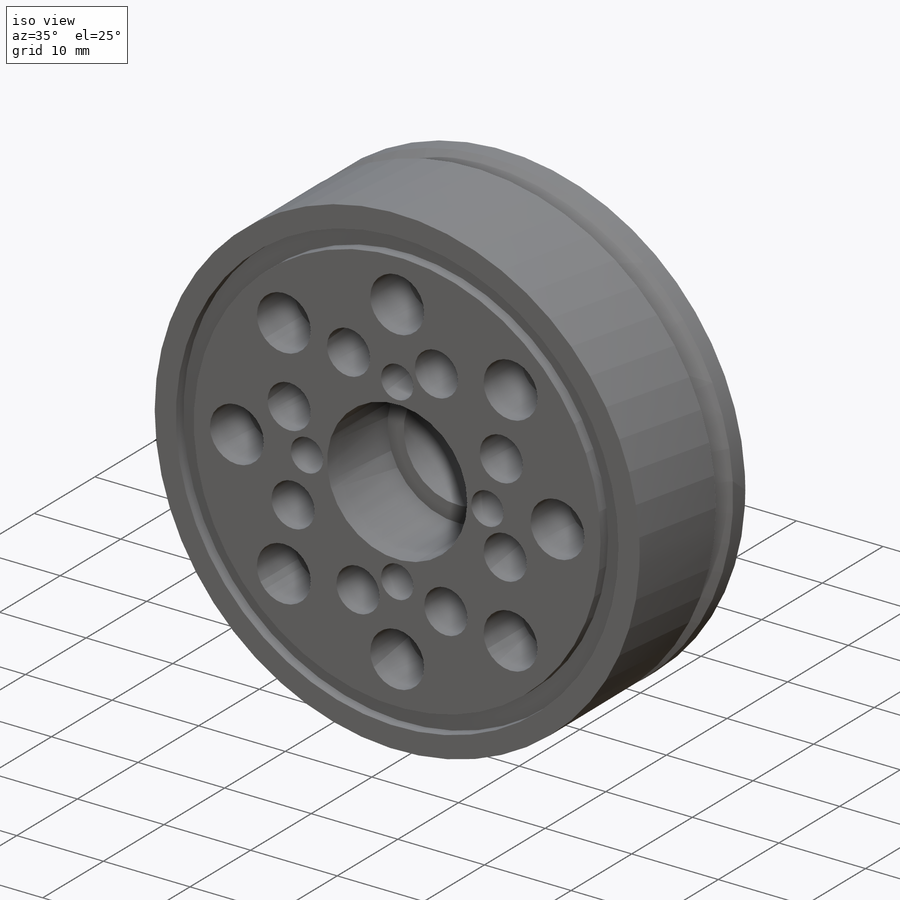
[diagram: iso view]
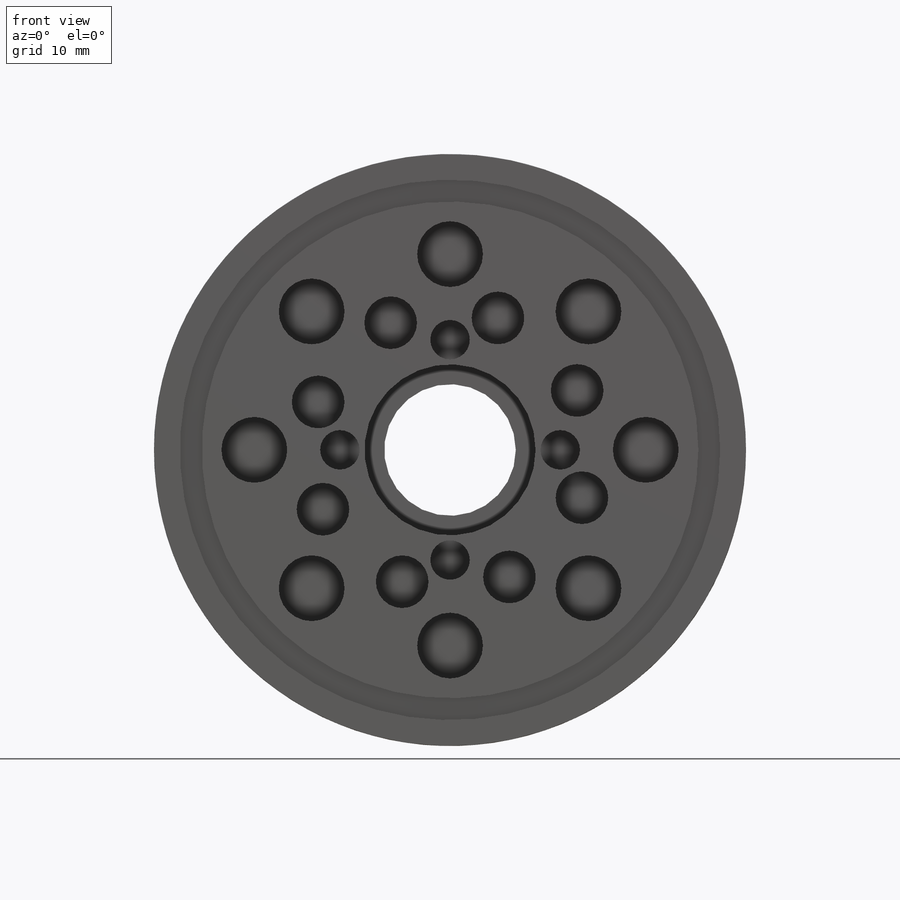
[diagram: front view]
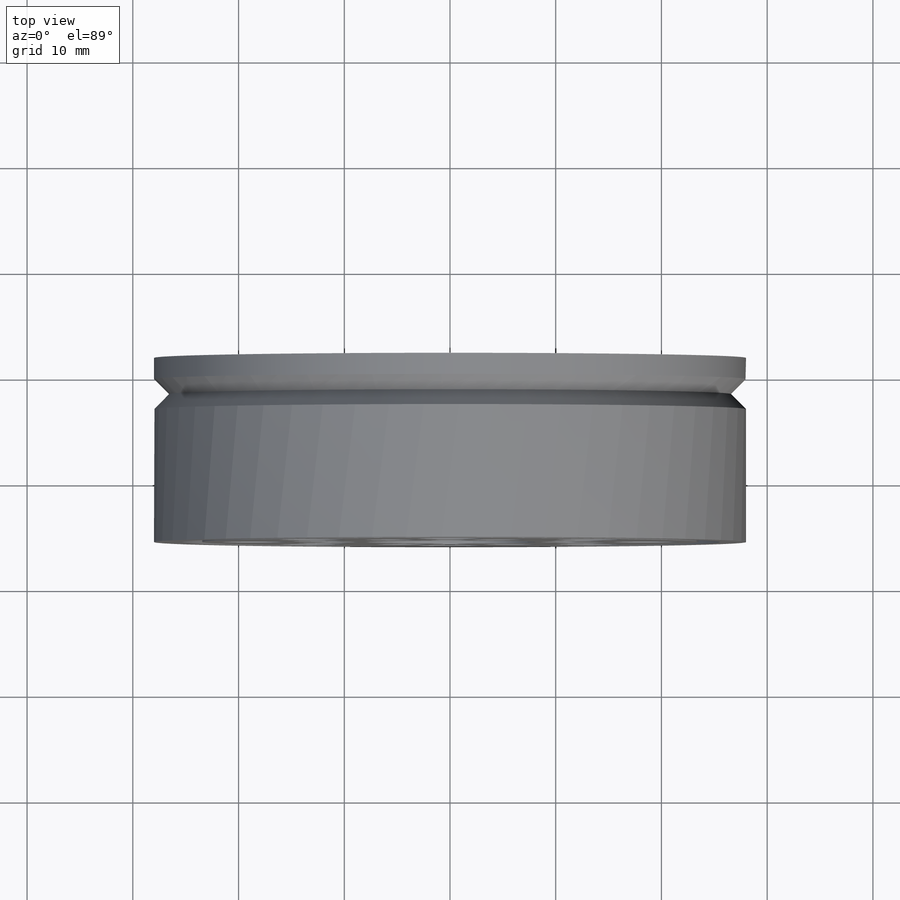
[diagram: top view]
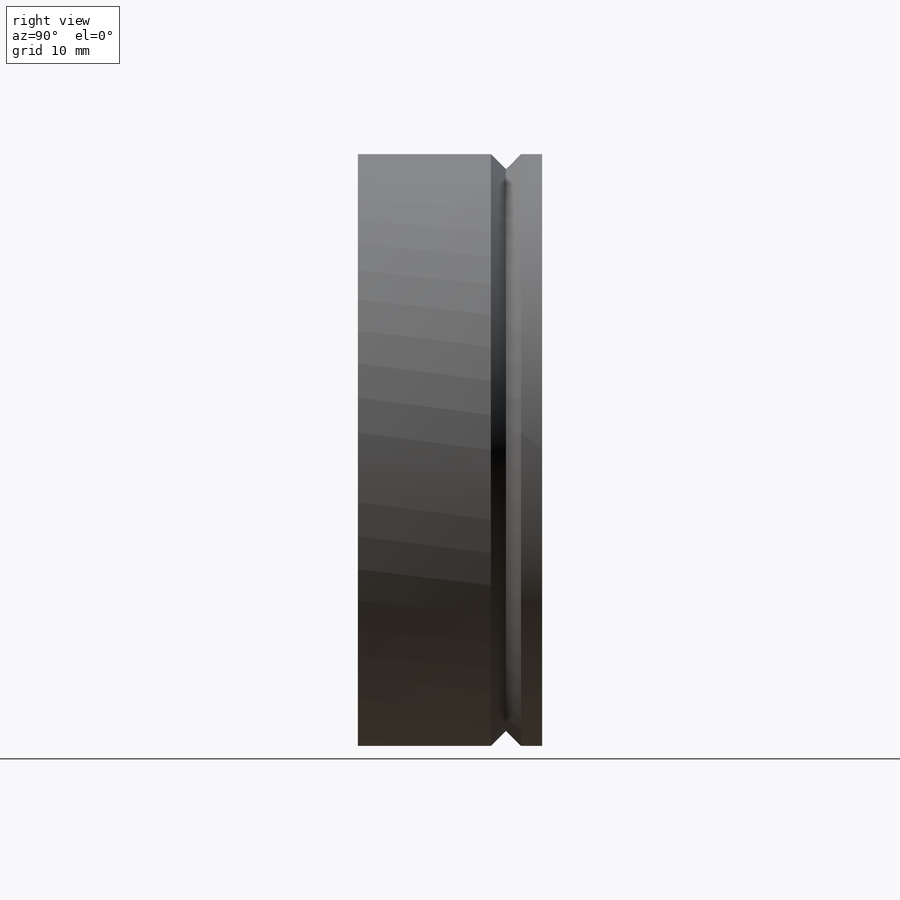
[diagram: right view]
SOLIDWORKS PART (.sldprt)
format: sldprt  version: not decoded by parser v0  size: 397,312 bytes
history: native  units: mm
features: sketch x8, cut_extrude x6, plane x4, pattern_circular x3, material x1, extrude x1, cut_revolve x1 (+9 scaffold rows collapsed)
feature tree (33):
  scaffold x9  (default folders/planes/origin — collapsed)
  material  "材质 <未指定>"
  plane  "前视基准面"
  plane  "上视基准面"
  plane  "右视基准面"
  sketch  "草图1"  dims[D1=~15.861354mm]
  extrude  "凸台-拉伸1"  Depth=14mm
  plane  "基准面1"  Offset=5mm
  sketch  "草图4"
  cut_extrude  "切除-拉伸2"  Depth=1mm
  sketch  "草图5"  dims[D1=~2.983267mm]
  cut_extrude  "切除-拉伸3"  Depth=8mm
  sketch  "草图6"  dims[D1=~1.692821mm]
  cut_extrude  "切除-拉伸4"  Depth=8mm
  sketch  "草图7"  dims[D1=~1.499231mm]
  cut_extrude  "切除-拉伸5"  Depth=5mm
  pattern_circular  "阵列(圆周)1"  Count=4 Angle=360deg
  sketch  "草图8"  dims[D1=~2.539702mm]
  cut_extrude  "切除-拉伸6"  Depth=5mm
  pattern_circular  "阵列(圆周)2"  Count=8 Angle=360deg
  sketch  "草图9"  dims[D1=~1.182645mm]
  cut_extrude  "切除-拉伸10"  Depth=5mm
  pattern_circular  "阵列(圆周)3"  Count=8 Angle=360deg
  sketch  "草图10"  dims[D1=2.02mm]
  cut_revolve  "切除-旋转1"  Angle=360deg
decode coverage: 18 of 19 modeling features carry decoded parameters
note: ~ marks probable driven/reference dimensions
note: suppression state not decoded; provenance and decode notes live in map.json
